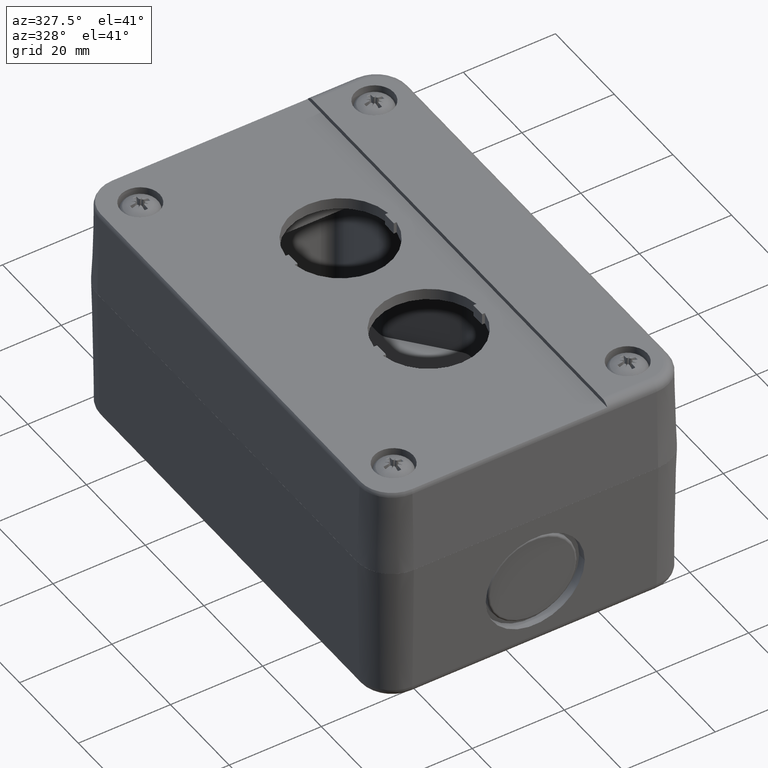
[diagram: clean part render]
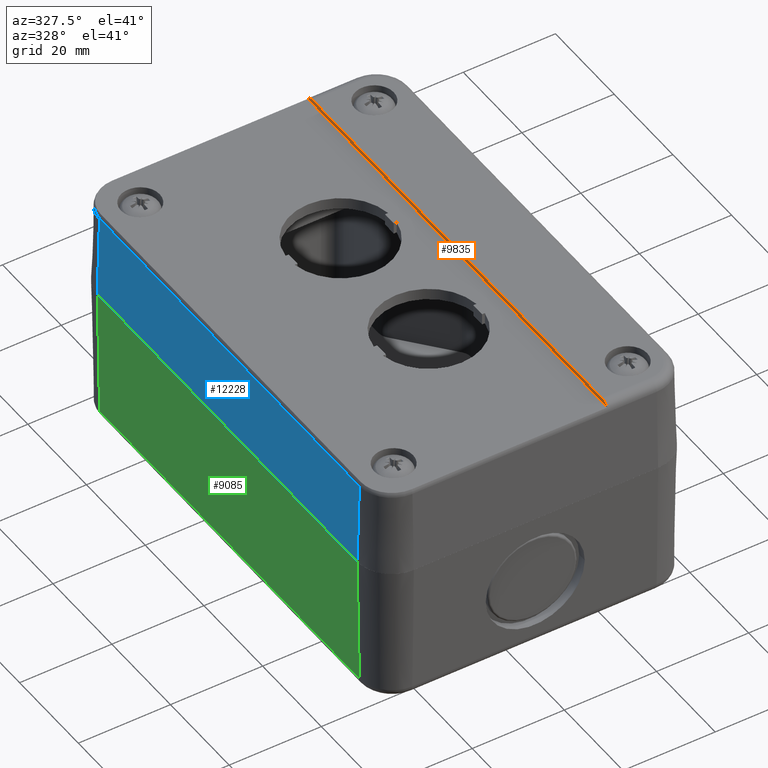
[diagram: same view with three faces highlighted in distinct colors, each labeled with its STEP entity id]
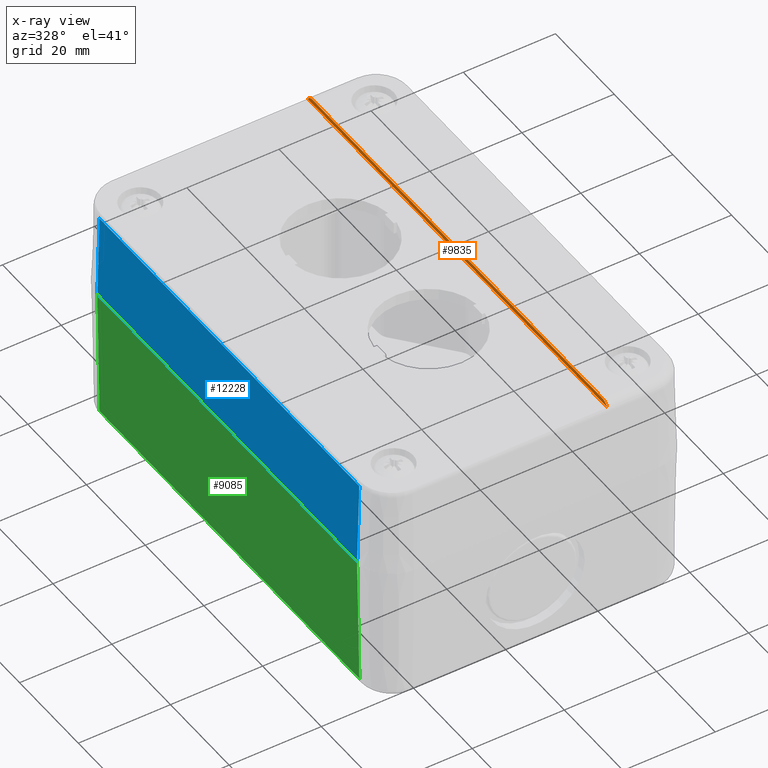
[diagram: x-ray of the same camera — body ghosted, the three highlighted faces saturated]
A machine part, auxiliary view with three faces highlighted in distinct colors.
The next image is the same camera in x-ray (body ghosted, the three faces saturated) — at least one of them is partly hidden behind the body in this view.
Their STEP definitions:

[orange] entity #9835 — the highlighted planar face has unit normal (1, 0, -0).
#9794=CARTESIAN_POINT('',(-16.881919325898497,-19.964899691055574,0.999999999999994));
#9795=DIRECTION('',(-1.0,0.0,0.0));
#9796=DIRECTION('',(0.0,0.0,1.0));
#9797=AXIS2_PLACEMENT_3D('',#9794,#9795,#9796);
#9798=PLANE('',#9797);
#9799=CARTESIAN_POINT('',(-16.881919325898497,31.068837374669936,0.999999999999994));
#9800=VERTEX_POINT('',#9799);
#9801=CARTESIAN_POINT('',(-16.881919325898497,29.336786567101065,0.0));
#9802=VERTEX_POINT('',#9801);
#9803=CARTESIAN_POINT('',(-16.881919325898501,29.336786567101065,2.0));
#9804=DIRECTION('',(-1.0,0.0,0.0));
#9805=DIRECTION('',(0.0,0.697790459841681,-0.716301943424653));
#9806=AXIS2_PLACEMENT_3D('',#9803,#9804,#9805);
#9807=CIRCLE('',#9806,2.000000000000000);
#9808=EDGE_CURVE('',#9800,#9802,#9807,.T.);
#9809=ORIENTED_EDGE('',*,*,#9808,.F.);
#9810=CARTESIAN_POINT('',(-16.881919325898501,-70.998636756781110,0.999999999999994));
#9811=VERTEX_POINT('',#9810);
#9812=CARTESIAN_POINT('',(-16.881919325898501,-70.998636756781110,0.999999999999994));
#9813=DIRECTION('',(0.0,1.0,0.0));
#9814=VECTOR('',#9813,102.067474131451050);
#9815=LINE('',#9812,#9814);
#9816=EDGE_CURVE('',#9811,#9800,#9815,.T.);
#9817=ORIENTED_EDGE('',*,*,#9816,.F.);
#9818=CARTESIAN_POINT('',(-16.881919325898501,-69.266585949212228,0.0));
#9819=VERTEX_POINT('',#9818);
#9820=CARTESIAN_POINT('',(-16.881919325898501,-69.266585949212228,2.0));
#9821=DIRECTION('',(-1.000000000000000,0.0,0.0));
#9822=DIRECTION('',(0.0,-0.697790459841678,-0.716301943424656));
#9823=AXIS2_PLACEMENT_3D('',#9820,#9821,#9822);
#9824=CIRCLE('',#9823,2.000000000000000);
#9825=EDGE_CURVE('',#9819,#9811,#9824,.T.);
#9826=ORIENTED_EDGE('',*,*,#9825,.F.);
#9827=CARTESIAN_POINT('',(-16.881919325898497,29.336786567101065,0.0));
#9828=DIRECTION('',(0.0,-1.0,0.0));
#9829=VECTOR('',#9828,98.603372516313300);
#9830=LINE('',#9827,#9829);
#9831=EDGE_CURVE('',#9802,#9819,#9830,.T.);
#9832=ORIENTED_EDGE('',*,*,#9831,.F.);
#9833=EDGE_LOOP('',(#9809,#9817,#9826,#9832));
#9834=FACE_OUTER_BOUND('',#9833,.T.);
#9835=ADVANCED_FACE('',(#9834),#9798,.F.);

[blue] entity #12228 — the highlighted planar face has unit normal (-0.9997, -0, 0.0262).
#10039=CARTESIAN_POINT('',(32.617395324052616,-64.214899691055578,1.947646103384254));
#10040=VERTEX_POINT('',#10039);
#11983=CARTESIAN_POINT('',(32.617395324052616,24.285100308944429,1.947646103384254));
#11984=VERTEX_POINT('',#11983);
#11992=CARTESIAN_POINT('',(32.617395324052616,24.285100308944429,1.947646103384254));
#11993=DIRECTION('',(0.0,-1.0,0.0));
#11994=VECTOR('',#11993,88.500000000000000);
#11995=LINE('',#11992,#11994);
#11996=EDGE_CURVE('',#11984,#10040,#11995,.T.);
#12186=CARTESIAN_POINT('',(33.090112847328605,-64.214899691055578,20.0));
#12187=VERTEX_POINT('',#12186);
#12188=CARTESIAN_POINT('',(32.617395324052616,-64.214899691055578,1.947646103384254));
#12189=DIRECTION('',(0.026176948307873,0.0,0.999657324975557));
#12190=VECTOR('',#12189,18.058542107973995);
#12191=LINE('',#12188,#12190);
#12192=EDGE_CURVE('',#10040,#12187,#12191,.T.);
#12205=CARTESIAN_POINT('',(32.566394415944863,24.285100308944429,0.0));
#12206=DIRECTION('',(0.999657324975557,0.0,-0.026176948307873));
#12207=DIRECTION('',(0.0,1.0,0.0));
#12208=AXIS2_PLACEMENT_3D('',#12205,#12206,#12207);
#12209=PLANE('',#12208);
#12210=ORIENTED_EDGE('',*,*,#11996,.F.);
#12211=CARTESIAN_POINT('',(33.090112847328598,24.285100308944429,20.0));
#12212=VERTEX_POINT('',#12211);
#12213=CARTESIAN_POINT('',(32.617395324052616,24.285100308944429,1.947646103384254));
#12214=DIRECTION('',(0.026176948307873,0.0,0.999657324975557));
#12215=VECTOR('',#12214,18.058542107973995);
#12216=LINE('',#12213,#12215);
#12217=EDGE_CURVE('',#11984,#12212,#12216,.T.);
#12218=ORIENTED_EDGE('',*,*,#12217,.T.);
#12219=CARTESIAN_POINT('',(33.090112847328598,24.285100308944429,20.0));
#12220=DIRECTION('',(0.0,-1.0,0.0));
#12221=VECTOR('',#12220,88.500000000000000);
#12222=LINE('',#12219,#12221);
#12223=EDGE_CURVE('',#12212,#12187,#12222,.T.);
#12224=ORIENTED_EDGE('',*,*,#12223,.T.);
#12225=ORIENTED_EDGE('',*,*,#12192,.F.);
#12226=EDGE_LOOP('',(#12210,#12218,#12224,#12225));
#12227=FACE_OUTER_BOUND('',#12226,.T.);
#12228=ADVANCED_FACE('',(#12227),#12209,.T.);

[green] entity #9085 — the highlighted planar face has unit normal (-0.9998, -0, -0.0175).
#3171=CARTESIAN_POINT('',(-49.406850161259896,-16.327564896536423,1.965095187125426));
#3172=VERTEX_POINT('',#3171);
#3207=CARTESIAN_POINT('',(-49.406850161259925,72.172435103463599,1.965095187125426));
#3208=VERTEX_POINT('',#3207);
#3240=CARTESIAN_POINT('',(-49.406850161259896,-16.327564896536423,1.965095187125426));
#3241=DIRECTION('',(0.0,1.0,0.0));
#3242=VECTOR('',#3241,88.500000000000028);
#3243=LINE('',#3240,#3242);
#3244=EDGE_CURVE('',#3172,#3208,#3243,.T.);
#3270=CARTESIAN_POINT('',(-49.906674283981957,-16.327564896536426,30.600000000000005));
#3271=VERTEX_POINT('',#3270);
#3279=CARTESIAN_POINT('',(-49.406850161259896,-16.327564896536423,1.965095187125426));
#3280=DIRECTION('',(-0.017452406437284,-1.240504E-016,0.999847695156391));
#3281=VECTOR('',#3280,28.639266711912207);
#3282=LINE('',#3279,#3281);
#3283=EDGE_CURVE('',#3172,#3271,#3282,.T.);
#9062=CARTESIAN_POINT('',(-49.372549297178494,-16.327564896536423,0.0));
#9063=DIRECTION('',(-0.999847695156391,-3.010316E-016,-0.017452406437283));
#9064=DIRECTION('',(0.0,-1.0,0.0));
#9065=AXIS2_PLACEMENT_3D('',#9062,#9063,#9064);
#9066=PLANE('',#9065);
#9067=ORIENTED_EDGE('',*,*,#3244,.F.);
#9068=ORIENTED_EDGE('',*,*,#3283,.T.);
#9069=CARTESIAN_POINT('',(-49.906674283982007,72.172435103463599,30.600000000000005));
#9070=VERTEX_POINT('',#9069);
#9071=CARTESIAN_POINT('',(-49.906674283981957,-16.327564896536426,30.600000000000005));
#9072=DIRECTION('',(0.0,1.0,0.0));
#9073=VECTOR('',#9072,88.500000000000028);
#9074=LINE('',#9071,#9073);
#9075=EDGE_CURVE('',#3271,#9070,#9074,.T.);
#9076=ORIENTED_EDGE('',*,*,#9075,.T.);
#9077=CARTESIAN_POINT('',(-49.406850161259925,72.172435103463599,1.965095187125426));
#9078=DIRECTION('',(-0.017452406437284,0.0,0.999847695156391));
#9079=VECTOR('',#9078,28.639266711912207);
#9080=LINE('',#9077,#9079);
#9081=EDGE_CURVE('',#3208,#9070,#9080,.T.);
#9082=ORIENTED_EDGE('',*,*,#9081,.F.);
#9083=EDGE_LOOP('',(#9067,#9068,#9076,#9082));
#9084=FACE_OUTER_BOUND('',#9083,.T.);
#9085=ADVANCED_FACE('',(#9084),#9066,.T.);